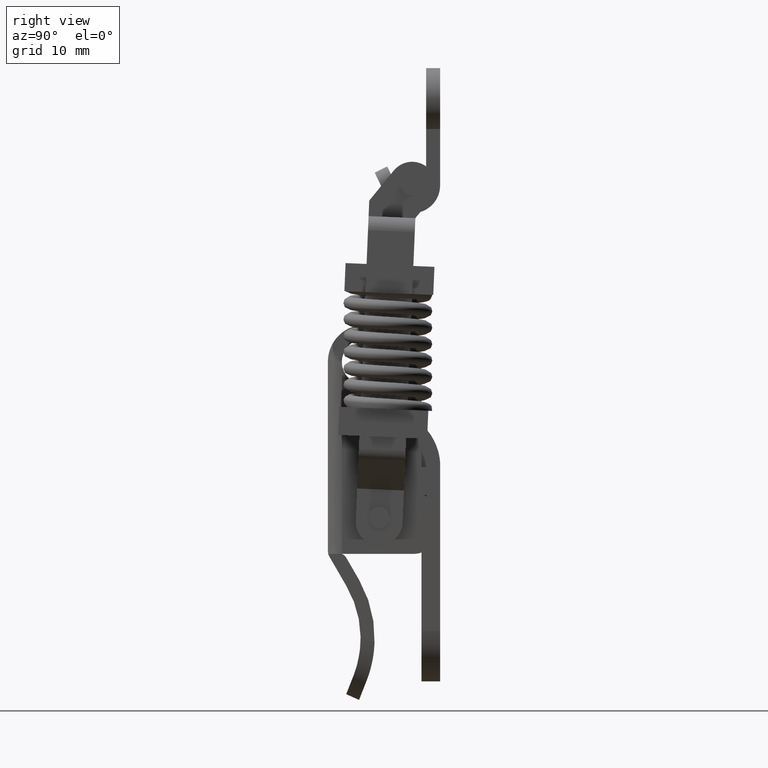
[diagram: clean part render]
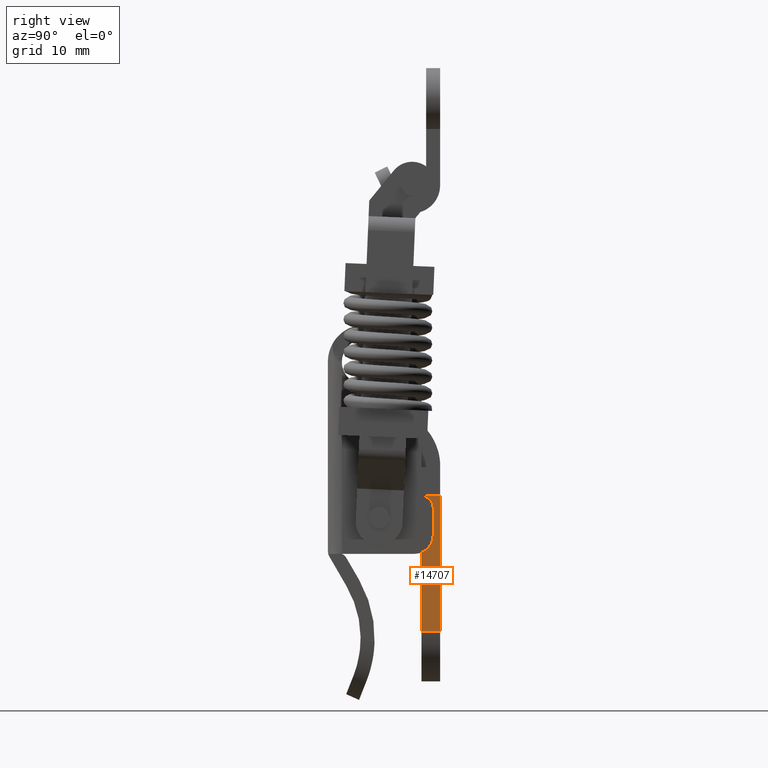
[diagram: same view with one face highlighted and labeled with its STEP entity id]
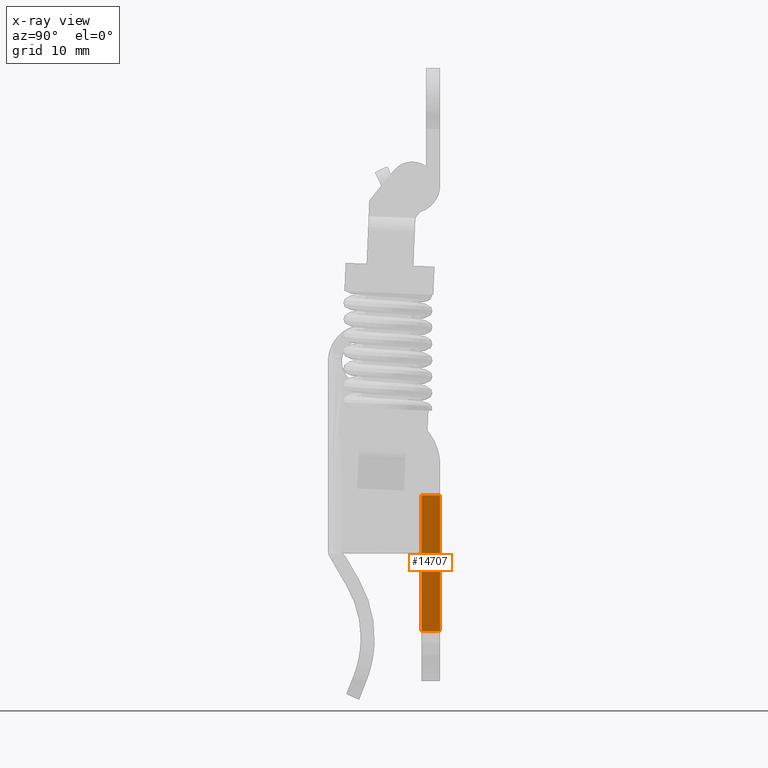
[diagram: x-ray of the same camera — body ghosted, the highlighted face saturated]
A machine part, right view. The second image highlights one B-rep face of the part: STEP entity #14707.
The next image is the same camera in x-ray: the body ghosted, the highlighted face saturated — about 0% of this face is hidden behind the body in this view.
In plain terms, the highlighted face is a freeform B-spline surface patch.
Its self-contained STEP definition (entity closure, byte-faithful):
#14672=CARTESIAN_POINT('',(0.900100003876506,-5.499999999999890,-48.227887471896402));
#14673=CARTESIAN_POINT('',(0.900100003876506,-5.499999999999890,-32.279337139183497));
#14674=CARTESIAN_POINT('',(3.099900049767788,-5.499999999999890,-48.227887471896402));
#14675=CARTESIAN_POINT('',(3.099900049767788,-5.499999999999890,-32.279337139183497));
#14676=B_SPLINE_SURFACE_WITH_KNOTS('',1,1,((#14672,#14674),(#14673,#14675)),.UNSPECIFIED.,.F.,.F.,.U.,(2,2),(2,2),(0.0,15.948550332712889),(0.0,2.199800045891282),.UNSPECIFIED.);
#14677=CARTESIAN_POINT('',(1.000000000000112,-5.500000000000000,-47.503612500000202));
#14678=VERTEX_POINT('',#14677);
#14679=CARTESIAN_POINT('',(3.0,-5.500000000000000,-47.503612500000202));
#14680=VERTEX_POINT('',#14679);
#14681=CARTESIAN_POINT('',(1.000000000000112,-5.500000000000000,-47.503612500000202));
#14682=CARTESIAN_POINT('',(3.0,-5.500000000000000,-47.503612500000202));
#14683=QUASI_UNIFORM_CURVE('',1,(#14681,#14682),.UNSPECIFIED.,.F.,.U.);
#14684=EDGE_CURVE('',#14678,#14680,#14683,.T.);
#14685=ORIENTED_EDGE('',*,*,#14684,.T.);
#14686=CARTESIAN_POINT('',(3.0,-5.499999999999890,-33.003612500000003));
#14687=VERTEX_POINT('',#14686);
#14688=CARTESIAN_POINT('',(3.0,-5.500000000000000,-47.503612500000202));
#14689=CARTESIAN_POINT('',(3.0,-5.499999999999890,-33.003612500000003));
#14690=QUASI_UNIFORM_CURVE('',1,(#14688,#14689),.UNSPECIFIED.,.F.,.U.);
#14691=EDGE_CURVE('',#14680,#14687,#14690,.T.);
#14692=ORIENTED_EDGE('',*,*,#14691,.T.);
#14693=CARTESIAN_POINT('',(1.000000000000112,-5.499999999999890,-33.003612500000003));
#14694=VERTEX_POINT('',#14693);
#14695=CARTESIAN_POINT('',(1.000000000000112,-5.499999999999890,-33.003612500000003));
#14696=CARTESIAN_POINT('',(3.0,-5.499999999999890,-33.003612500000003));
#14697=QUASI_UNIFORM_CURVE('',1,(#14695,#14696),.UNSPECIFIED.,.F.,.U.);
#14698=EDGE_CURVE('',#14694,#14687,#14697,.T.);
#14699=ORIENTED_EDGE('',*,*,#14698,.F.);
#14700=CARTESIAN_POINT('',(1.000000000000112,-5.500000000000000,-47.503612500000202));
#14701=CARTESIAN_POINT('',(1.000000000000112,-5.499999999999890,-33.003612500000003));
#14702=QUASI_UNIFORM_CURVE('',1,(#14700,#14701),.UNSPECIFIED.,.F.,.U.);
#14703=EDGE_CURVE('',#14678,#14694,#14702,.T.);
#14704=ORIENTED_EDGE('',*,*,#14703,.F.);
#14705=EDGE_LOOP('',(#14685,#14692,#14699,#14704));
#14706=FACE_OUTER_BOUND('',#14705,.T.);
#14707=ADVANCED_FACE('',(#14706),#14676,.F.);